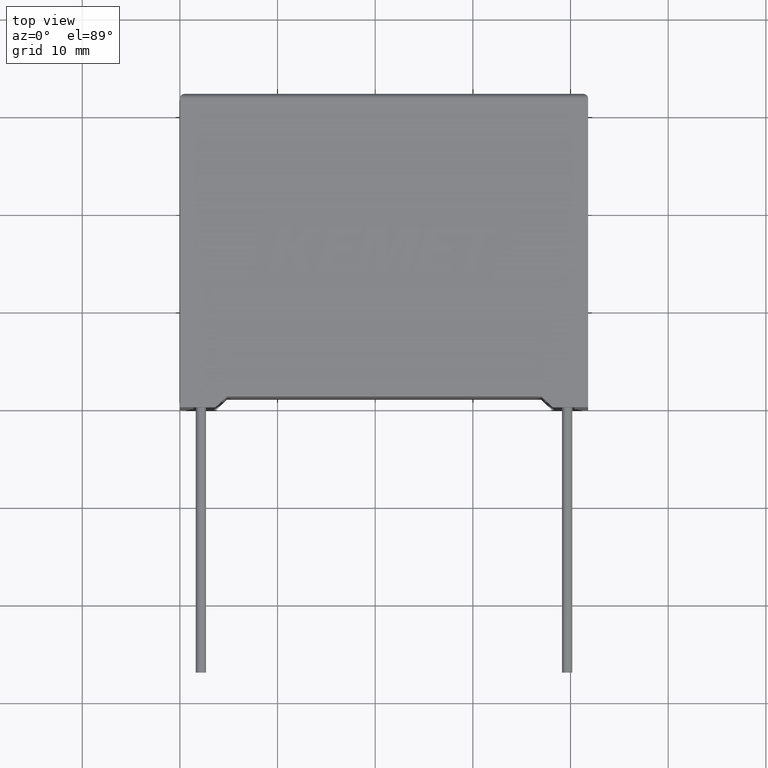
[diagram: clean part render]
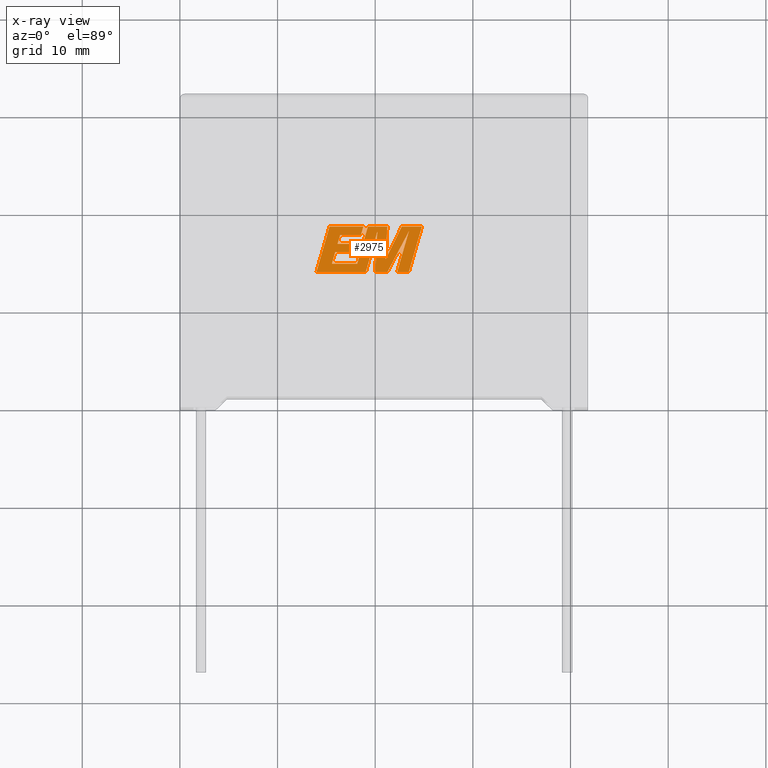
[diagram: x-ray — body ghosted, one internal face saturated and labeled with its STEP entity id]
A machine part, top view, then the same camera in x-ray: the body is ghosted and one INTERNAL B-rep face — a face not visible from any outside direction — is saturated and labeled: STEP entity #2975.
In plain terms, the highlighted planar face has unit normal (0, 0, -1).
Its self-contained STEP definition (entity closure, byte-faithful):
#6 = VERTEX_POINT ( 'NONE', #2718 ) ;
#23 = CARTESIAN_POINT ( 'NONE',  ( 18.16009646136971156, 14.70337404831258432, 19.19999999999999929 ) ) ;
#79 = VECTOR ( 'NONE', #1708, 1000.000000000000227 ) ;
#104 = DIRECTION ( 'NONE',  ( 1.000000000000000000, 0.000000000000000000, 0.000000000000000000 ) ) ;
#108 = CARTESIAN_POINT ( 'NONE',  ( 18.78283431738138631, 18.49458116021453336, 19.19999999999999929 ) ) ;
#112 = EDGE_CURVE ( 'NONE', #1979, #2598, #3031, .T. ) ;
#114 = CARTESIAN_POINT ( 'NONE',  ( 15.89623707928316776, 15.86702145934523678, 19.19999999999999929 ) ) ;
#124 = VERTEX_POINT ( 'NONE', #391 ) ;
#125 = LINE ( 'NONE', #2741, #1632 ) ;
#127 = ORIENTED_EDGE ( 'NONE', *, *, #2131, .F. ) ;
#163 = DIRECTION ( 'NONE',  ( 1.000000000000000000, 0.000000000000000000, 0.000000000000000000 ) ) ;
#165 = LINE ( 'NONE', #1089, #1197 ) ;
#235 = EDGE_CURVE ( 'NONE', #648, #2230, #2501, .T. ) ;
#252 = ORIENTED_EDGE ( 'NONE', *, *, #2282, .F. ) ;
#257 = LINE ( 'NONE', #1186, #2873 ) ;
#264 = DIRECTION ( 'NONE',  ( -0.4443210308329518243, -0.8958676361826801715, 0.000000000000000000 ) ) ;
#276 = ORIENTED_EDGE ( 'NONE', *, *, #847, .F. ) ;
#283 = AXIS2_PLACEMENT_3D ( 'NONE', #514, #1453, #287 ) ;
#287 = DIRECTION ( 'NONE',  ( -1.000000000000000000, 0.000000000000000000, 0.000000000000000000 ) ) ;
#342 = CARTESIAN_POINT ( 'NONE',  ( 18.15272223384586070, 16.73255362160798043, 19.19999999999999929 ) ) ;
#345 = ORIENTED_EDGE ( 'NONE', *, *, #1323, .F. ) ;
#380 = ORIENTED_EDGE ( 'NONE', *, *, #1447, .F. ) ;
#386 = CARTESIAN_POINT ( 'NONE',  ( 21.23193201370533245, 13.81262999999985297, 19.19999999999999929 ) ) ;
#391 = CARTESIAN_POINT ( 'NONE',  ( 15.32396570327697027, 18.49458116021453336, 19.19999999999999929 ) ) ;
#403 = LINE ( 'NONE', #1321, #2432 ) ;
#404 = VECTOR ( 'NONE', #1903, 1000.000000000000114 ) ;
#451 = VECTOR ( 'NONE', #980, 1000.000000000000000 ) ;
#455 = DIRECTION ( 'NONE',  ( 0.2793947940878294678, 0.9601763114327593884, 0.000000000000000000 ) ) ;
#458 = DIRECTION ( 'NONE',  ( -1.000000000000000000, 0.000000000000000000, 0.000000000000000000 ) ) ;
#469 = EDGE_CURVE ( 'NONE', #543, #2969, #2287, .T. ) ;
#475 = CARTESIAN_POINT ( 'NONE',  ( 22.72258785960118033, 18.49458116021453336, 19.19999999999999929 ) ) ;
#484 = LINE ( 'NONE', #2561, #717 ) ;
#511 = VECTOR ( 'NONE', #615, 1000.000000000000000 ) ;
#514 = CARTESIAN_POINT ( 'NONE',  ( -0.5081854015330893315, -1.341323862995330796, 19.19999999999999929 ) ) ;
#519 = CARTESIAN_POINT ( 'NONE',  ( 20.21740628887921432, 17.98084805376149475, 19.19999999999999929 ) ) ;
#529 = CARTESIAN_POINT ( 'NONE',  ( 22.72258785960118033, 18.49458116021453336, 19.19999999999999929 ) ) ;
#532 = CARTESIAN_POINT ( 'NONE',  ( 18.15272223384586070, 16.73255362160798043, 19.19999999999999929 ) ) ;
#543 = VERTEX_POINT ( 'NONE', #2634 ) ;
#545 = LINE ( 'NONE', #108, #562 ) ;
#562 = VECTOR ( 'NONE', #1899, 1000.000000000000000 ) ;
#564 = LINE ( 'NONE', #2183, #79 ) ;
#612 = VERTEX_POINT ( 'NONE', #736 ) ;
#615 = DIRECTION ( 'NONE',  ( -1.000000000000000000, 0.000000000000000000, 0.000000000000000000 ) ) ;
#638 = EDGE_CURVE ( 'NONE', #6, #875, #1667, .T. ) ;
#648 = VERTEX_POINT ( 'NONE', #1686 ) ;
#671 = VECTOR ( 'NONE', #1036, 1000.000000000000114 ) ;
#701 = EDGE_CURVE ( 'NONE', #124, #2886, #1156, .T. ) ;
#717 = VECTOR ( 'NONE', #455, 1000.000000000000114 ) ;
#720 = VERTEX_POINT ( 'NONE', #2091 ) ;
#736 = CARTESIAN_POINT ( 'NONE',  ( 19.02058908988481178, 13.81262999999985297, 19.19999999999999929 ) ) ;
#742 = PLANE ( 'NONE',  #283 ) ;
#802 = CARTESIAN_POINT ( 'NONE',  ( 19.24983076552901906, 18.49458116021453336, 19.19999999999999929 ) ) ;
#805 = DIRECTION ( 'NONE',  ( -0.05596501978069369498, -0.9984327301130239141, 0.000000000000000000 ) ) ;
#813 = EDGE_CURVE ( 'NONE', #1573, #2082, #1701, .T. ) ;
#818 = LINE ( 'NONE', #2446, #671 ) ;
#847 = EDGE_CURVE ( 'NONE', #2969, #2971, #2190, .T. ) ;
#855 = DIRECTION ( 'NONE',  ( 0.2759782365590697228, 0.9611638845408965182, 0.000000000000000000 ) ) ;
#875 = VERTEX_POINT ( 'NONE', #802 ) ;
#889 = VERTEX_POINT ( 'NONE', #2449 ) ;
#916 = DIRECTION ( 'NONE',  ( 0.2746459304916892830, 0.9615454294334481178, 0.000000000000000000 ) ) ;
#947 = ORIENTED_EDGE ( 'NONE', *, *, #112, .F. ) ;
#954 = DIRECTION ( 'NONE',  ( 1.000000000000000000, 0.000000000000000000, 0.000000000000000000 ) ) ;
#980 = DIRECTION ( 'NONE',  ( -1.000000000000000000, 0.000000000000000000, 0.000000000000000000 ) ) ;
#1036 = DIRECTION ( 'NONE',  ( 0.2732148821746286371, 0.9619530280415482526, 0.000000000000000000 ) ) ;
#1068 = ORIENTED_EDGE ( 'NONE', *, *, #235, .F. ) ;
#1089 = CARTESIAN_POINT ( 'NONE',  ( 20.21740628887921432, 17.98084805376149475, 19.19999999999999929 ) ) ;
#1090 = CARTESIAN_POINT ( 'NONE',  ( 23.42996431446111316, 13.81262999999985297, 19.19999999999999929 ) ) ;
#1094 = VECTOR ( 'NONE', #2025, 1000.000000000000000 ) ;
#1156 = LINE ( 'NONE', #1444, #404 ) ;
#1186 = CARTESIAN_POINT ( 'NONE',  ( 18.18721596238323102, 13.81262999999985297, 19.19999999999999929 ) ) ;
#1197 = VECTOR ( 'NONE', #805, 1000.000000000000227 ) ;
#1200 = ORIENTED_EDGE ( 'NONE', *, *, #701, .F. ) ;
#1214 = VERTEX_POINT ( 'NONE', #2749 ) ;
#1219 = FACE_OUTER_BOUND ( 'NONE', #2585, .T. ) ;
#1265 = CARTESIAN_POINT ( 'NONE',  ( 15.89623707928316776, 15.86702145934523678, 19.19999999999999929 ) ) ;
#1288 = VECTOR ( 'NONE', #104, 1000.000000000000000 ) ;
#1321 = CARTESIAN_POINT ( 'NONE',  ( 16.39657414692667103, 17.60339579713521019, 19.19999999999999929 ) ) ;
#1323 = EDGE_CURVE ( 'NONE', #2294, #1979, #2116, .T. ) ;
#1328 = EDGE_CURVE ( 'NONE', #3020, #543, #2740, .T. ) ;
#1329 = ORIENTED_EDGE ( 'NONE', *, *, #2579, .F. ) ;
#1343 = CARTESIAN_POINT ( 'NONE',  ( 16.39657414692667103, 17.60339579713521019, 19.19999999999999929 ) ) ;
#1345 = VERTEX_POINT ( 'NONE', #1796 ) ;
#1369 = DIRECTION ( 'NONE',  ( 0.2763139702539113007, 0.9610674221107073922, 0.000000000000000000 ) ) ;
#1426 = LINE ( 'NONE', #475, #2487 ) ;
#1444 = CARTESIAN_POINT ( 'NONE',  ( 15.32396570327697027, 18.49458116021453336, 19.19999999999999929 ) ) ;
#1447 = EDGE_CURVE ( 'NONE', #2644, #889, #165, .T. ) ;
#1453 = DIRECTION ( 'NONE',  ( 0.000000000000000000, 0.000000000000000000, -1.000000000000000000 ) ) ;
#1473 = CARTESIAN_POINT ( 'NONE',  ( 24.77605979522625290, 18.49458116021453336, 19.19999999999999929 ) ) ;
#1530 = ORIENTED_EDGE ( 'NONE', *, *, #2624, .F. ) ;
#1573 = VERTEX_POINT ( 'NONE', #23 ) ;
#1593 = CARTESIAN_POINT ( 'NONE',  ( 22.24020815187459732, 13.81262999999985297, 19.19999999999999929 ) ) ;
#1602 = CARTESIAN_POINT ( 'NONE',  ( 22.24020815187459732, 13.81262999999985297, 19.19999999999999929 ) ) ;
#1632 = VECTOR ( 'NONE', #855, 1000.000000000000227 ) ;
#1647 = ORIENTED_EDGE ( 'NONE', *, *, #469, .F. ) ;
#1667 = LINE ( 'NONE', #2862, #2210 ) ;
#1669 = EDGE_CURVE ( 'NONE', #720, #124, #545, .T. ) ;
#1683 = VECTOR ( 'NONE', #2139, 1000.000000000000000 ) ;
#1686 = CARTESIAN_POINT ( 'NONE',  ( 21.23193201370533245, 13.81262999999985297, 19.19999999999999929 ) ) ;
#1697 = LINE ( 'NONE', #2456, #2981 ) ;
#1701 = LINE ( 'NONE', #2683, #451 ) ;
#1708 = DIRECTION ( 'NONE',  ( -0.2760118818968580467, -0.9611542233438683525, 0.000000000000000000 ) ) ;
#1760 = ORIENTED_EDGE ( 'NONE', *, *, #2735, .F. ) ;
#1784 = VECTOR ( 'NONE', #1961, 1000.000000000000000 ) ;
#1787 = EDGE_CURVE ( 'NONE', #2598, #2161, #2469, .T. ) ;
#1796 = CARTESIAN_POINT ( 'NONE',  ( 18.52971893973640505, 17.60339579713521019, 19.19999999999999929 ) ) ;
#1811 = EDGE_CURVE ( 'NONE', #612, #2644, #125, .T. ) ;
#1812 = LINE ( 'NONE', #2360, #1872 ) ;
#1840 = ORIENTED_EDGE ( 'NONE', *, *, #1978, .F. ) ;
#1848 = ORIENTED_EDGE ( 'NONE', *, *, #1669, .F. ) ;
#1859 = VERTEX_POINT ( 'NONE', #1343 ) ;
#1872 = VECTOR ( 'NONE', #2399, 1000.000000000000227 ) ;
#1899 = DIRECTION ( 'NONE',  ( -1.000000000000000000, 0.000000000000000000, 0.000000000000000000 ) ) ;
#1903 = DIRECTION ( 'NONE',  ( -0.2765379750249963298, -0.9610029908221277006, 0.000000000000000000 ) ) ;
#1911 = VECTOR ( 'NONE', #2635, 1000.000000000000000 ) ;
#1912 = VECTOR ( 'NONE', #916, 1000.000000000000000 ) ;
#1938 = EDGE_CURVE ( 'NONE', #2082, #2294, #1812, .T. ) ;
#1961 = DIRECTION ( 'NONE',  ( 0.05375259206908577364, 0.9985542843760946141, 0.000000000000000000 ) ) ;
#1978 = EDGE_CURVE ( 'NONE', #2886, #612, #257, .T. ) ;
#1979 = VERTEX_POINT ( 'NONE', #2840 ) ;
#1988 = LINE ( 'NONE', #2647, #2930 ) ;
#2025 = DIRECTION ( 'NONE',  ( 1.000000000000000000, 0.000000000000000000, 0.000000000000000000 ) ) ;
#2082 = VERTEX_POINT ( 'NONE', #2295 ) ;
#2091 = CARTESIAN_POINT ( 'NONE',  ( 18.78283431738138631, 18.49458116021453336, 19.19999999999999929 ) ) ;
#2116 = LINE ( 'NONE', #1265, #1288 ) ;
#2131 = EDGE_CURVE ( 'NONE', #1859, #1345, #403, .T. ) ;
#2139 = DIRECTION ( 'NONE',  ( 0.4668459304955080436, 0.8843386665637680277, 0.000000000000000000 ) ) ;
#2161 = VERTEX_POINT ( 'NONE', #2632 ) ;
#2181 = ORIENTED_EDGE ( 'NONE', *, *, #2633, .F. ) ;
#2183 = CARTESIAN_POINT ( 'NONE',  ( 23.44294751043418401, 18.00092075805291358, 19.19999999999999929 ) ) ;
#2190 = LINE ( 'NONE', #1473, #1911 ) ;
#2205 = EDGE_CURVE ( 'NONE', #1345, #720, #818, .T. ) ;
#2210 = VECTOR ( 'NONE', #458, 1000.000000000000000 ) ;
#2215 = CARTESIAN_POINT ( 'NONE',  ( 23.44294751043418401, 18.00092075805291358, 19.19999999999999929 ) ) ;
#2230 = VERTEX_POINT ( 'NONE', #2215 ) ;
#2255 = VECTOR ( 'NONE', #1369, 1000.000000000000114 ) ;
#2282 = EDGE_CURVE ( 'NONE', #889, #648, #1988, .T. ) ;
#2287 = LINE ( 'NONE', #1090, #2255 ) ;
#2290 = CARTESIAN_POINT ( 'NONE',  ( 13.97668863403073836, 13.81262999999985119, 19.19999999999999929 ) ) ;
#2294 = VERTEX_POINT ( 'NONE', #114 ) ;
#2295 = CARTESIAN_POINT ( 'NONE',  ( 15.56468155929728248, 14.70337404831258432, 19.19999999999999929 ) ) ;
#2320 = ORIENTED_EDGE ( 'NONE', *, *, #1328, .F. ) ;
#2336 = ORIENTED_EDGE ( 'NONE', *, *, #1938, .F. ) ;
#2360 = CARTESIAN_POINT ( 'NONE',  ( 15.56468155929728248, 14.70337404831258432, 19.19999999999999929 ) ) ;
#2365 = CARTESIAN_POINT ( 'NONE',  ( 24.77605979522625290, 18.49458116021453336, 19.19999999999999929 ) ) ;
#2399 = DIRECTION ( 'NONE',  ( 0.2740217765954066076, 0.9617234872620595842, 0.000000000000000000 ) ) ;
#2409 = DIRECTION ( 'NONE',  ( -0.2762517575166416051, -0.9610853065513833560, 0.000000000000000000 ) ) ;
#2410 = ORIENTED_EDGE ( 'NONE', *, *, #638, .F. ) ;
#2432 = VECTOR ( 'NONE', #163, 1000.000000000000000 ) ;
#2446 = CARTESIAN_POINT ( 'NONE',  ( 18.52971893973640505, 17.60339579713521019, 19.19999999999999929 ) ) ;
#2449 = CARTESIAN_POINT ( 'NONE',  ( 19.98376570519902629, 13.81262999999985297, 19.19999999999999929 ) ) ;
#2453 = ORIENTED_EDGE ( 'NONE', *, *, #813, .F. ) ;
#2456 = CARTESIAN_POINT ( 'NONE',  ( 19.24983076552901906, 18.49458116021453336, 19.19999999999999929 ) ) ;
#2469 = LINE ( 'NONE', #342, #511 ) ;
#2487 = VECTOR ( 'NONE', #264, 1000.000000000000227 ) ;
#2501 = LINE ( 'NONE', #386, #1683 ) ;
#2516 = EDGE_CURVE ( 'NONE', #2971, #1214, #1426, .T. ) ;
#2561 = CARTESIAN_POINT ( 'NONE',  ( 16.14317405007220430, 16.73255362160798043, 19.19999999999999929 ) ) ;
#2565 = ORIENTED_EDGE ( 'NONE', *, *, #1787, .F. ) ;
#2579 = EDGE_CURVE ( 'NONE', #2161, #1859, #484, .T. ) ;
#2585 = EDGE_LOOP ( 'NONE', ( #276, #1647, #2320, #1530, #1068, #252, #380, #2941, #1840, #1200, #1848, #2651, #127, #1329, #2565, #947, #345, #2336, #2453, #1760, #2410, #2181, #2989 ) ) ;
#2598 = VERTEX_POINT ( 'NONE', #532 ) ;
#2624 = EDGE_CURVE ( 'NONE', #2230, #3020, #564, .T. ) ;
#2632 = CARTESIAN_POINT ( 'NONE',  ( 16.14317405007220430, 16.73255362160798043, 19.19999999999999929 ) ) ;
#2633 = EDGE_CURVE ( 'NONE', #1214, #6, #2906, .T. ) ;
#2634 = CARTESIAN_POINT ( 'NONE',  ( 23.42996431446111316, 13.81262999999985297, 19.19999999999999929 ) ) ;
#2635 = DIRECTION ( 'NONE',  ( -1.000000000000000000, 0.000000000000000000, 0.000000000000000000 ) ) ;
#2644 = VERTEX_POINT ( 'NONE', #519 ) ;
#2647 = CARTESIAN_POINT ( 'NONE',  ( 19.98376570519902629, 13.81262999999985297, 19.19999999999999929 ) ) ;
#2651 = ORIENTED_EDGE ( 'NONE', *, *, #2205, .F. ) ;
#2654 = CARTESIAN_POINT ( 'NONE',  ( 21.06365366960111629, 15.14973509566545573, 19.19999999999999929 ) ) ;
#2683 = CARTESIAN_POINT ( 'NONE',  ( 18.16009646136971156, 14.70337404831258432, 19.19999999999999929 ) ) ;
#2718 = CARTESIAN_POINT ( 'NONE',  ( 21.24370812317940249, 18.49458116021453336, 19.19999999999999929 ) ) ;
#2735 = EDGE_CURVE ( 'NONE', #875, #1573, #1697, .T. ) ;
#2740 = LINE ( 'NONE', #1602, #1094 ) ;
#2741 = CARTESIAN_POINT ( 'NONE',  ( 19.02058908988481178, 13.81262999999985297, 19.19999999999999929 ) ) ;
#2749 = CARTESIAN_POINT ( 'NONE',  ( 21.06365366960111629, 15.14973509566545573, 19.19999999999999929 ) ) ;
#2758 = CARTESIAN_POINT ( 'NONE',  ( 17.90550054384709000, 15.86702145934523678, 19.19999999999999929 ) ) ;
#2840 = CARTESIAN_POINT ( 'NONE',  ( 17.90550054384709000, 15.86702145934523678, 19.19999999999999929 ) ) ;
#2862 = CARTESIAN_POINT ( 'NONE',  ( 21.24370812317940249, 18.49458116021453336, 19.19999999999999929 ) ) ;
#2873 = VECTOR ( 'NONE', #954, 1000.000000000000000 ) ;
#2886 = VERTEX_POINT ( 'NONE', #2290 ) ;
#2906 = LINE ( 'NONE', #2654, #1784 ) ;
#2912 = DIRECTION ( 'NONE',  ( 1.000000000000000000, 0.000000000000000000, 0.000000000000000000 ) ) ;
#2930 = VECTOR ( 'NONE', #2912, 1000.000000000000000 ) ;
#2941 = ORIENTED_EDGE ( 'NONE', *, *, #1811, .F. ) ;
#2969 = VERTEX_POINT ( 'NONE', #2365 ) ;
#2971 = VERTEX_POINT ( 'NONE', #529 ) ;
#2975 = ADVANCED_FACE ( 'NONE', ( #1219 ), #742, .T. ) ;
#2981 = VECTOR ( 'NONE', #2409, 1000.000000000000114 ) ;
#2989 = ORIENTED_EDGE ( 'NONE', *, *, #2516, .F. ) ;
#3020 = VERTEX_POINT ( 'NONE', #1593 ) ;
#3031 = LINE ( 'NONE', #2758, #1912 ) ;